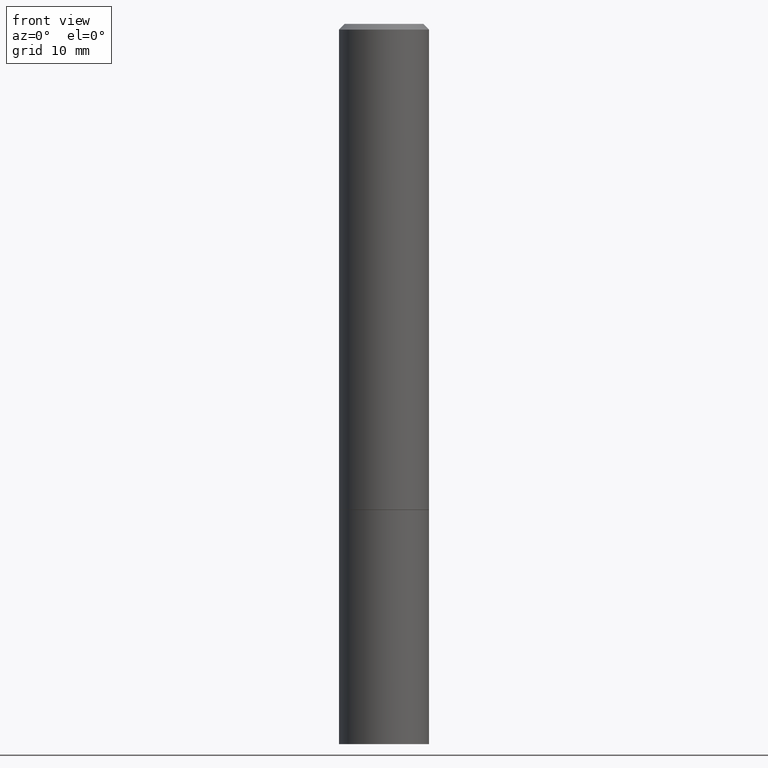
[diagram: clean part render]
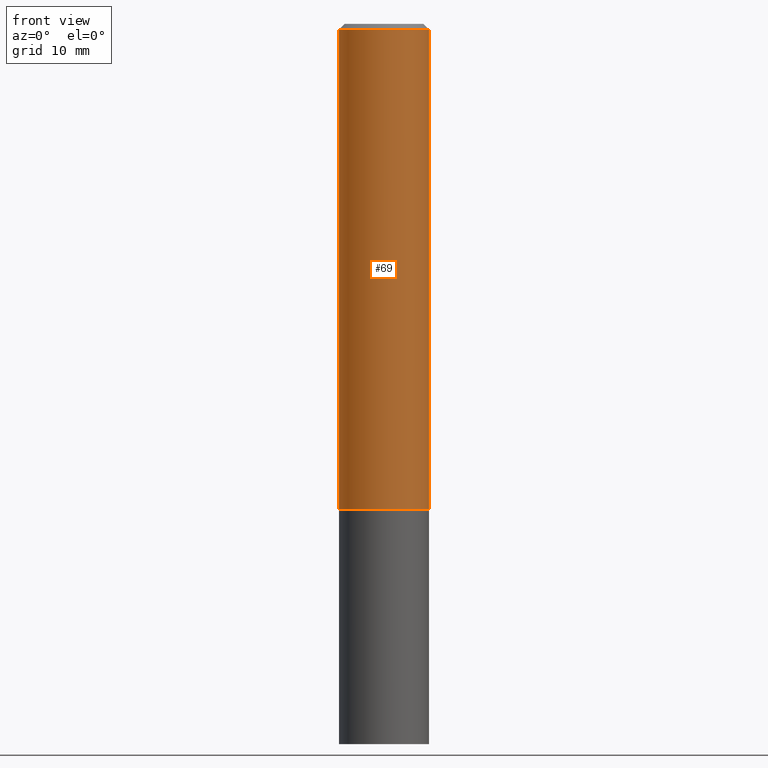
[diagram: same view with one face highlighted and labeled with its STEP entity id]
A machine part, front view. The second image highlights one B-rep face of the part: STEP entity #69.
In plain terms, the highlighted cylindrical surface (partial cylindrical patch) has radius 3.9687 mm, axis along (-0, 0, 1).
Its self-contained STEP definition (entity closure, byte-faithful):
#38 = CARTESIAN_POINT ( 'NONE',  ( 0.1562500000000000000, -6.979471196347444214E-15, -1.686499999999999888 ) ) ;
#45 = CARTESIAN_POINT ( 'NONE',  ( -0.1562499999999998057, 1.021258291611614692E-15, -0.02000000000000003511 ) ) ;
#54 = VERTEX_POINT ( 'NONE', #45 ) ;
#60 = ORIENTED_EDGE ( 'NONE', *, *, #201, .F. ) ;
#61 = CIRCLE ( 'NONE', #310, 0.1562500000000000000 ) ;
#64 = VECTOR ( 'NONE', #219, 39.37007874015748143 ) ;
#69 = ADVANCED_FACE ( 'NONE', ( #359 ), #93, .T. ) ;
#70 = CARTESIAN_POINT ( 'NONE',  ( 0.000000000000000000, 0.000000000000000000, 0.000000000000000000 ) ) ;
#78 = CARTESIAN_POINT ( 'NONE',  ( -0.1562499999999999167, 1.110223024625155949E-15, -7.685836078523285555E-30 ) ) ;
#80 = AXIS2_PLACEMENT_3D ( 'NONE', #303, #209, #121 ) ;
#82 = DIRECTION ( 'NONE',  ( -2.445468806185136877E-29, 3.491481338843145188E-15, 1.000000000000000000 ) ) ;
#83 = VERTEX_POINT ( 'NONE', #161 ) ;
#85 = ORIENTED_EDGE ( 'NONE', *, *, #99, .F. ) ;
#88 = AXIS2_PLACEMENT_3D ( 'NONE', #70, #298, #218 ) ;
#93 = CYLINDRICAL_SURFACE ( 'NONE', #88, 0.1562499999999999167 ) ;
#99 = EDGE_CURVE ( 'NONE', #54, #191, #134, .T. ) ;
#121 = DIRECTION ( 'NONE',  ( 1.000000000000000000, -6.982962677686265133E-15, 0.000000000000000000 ) ) ;
#132 = CARTESIAN_POINT ( 'NONE',  ( 0.1562499999999998057, -1.141782438928663330E-15, -0.02000000000000003511 ) ) ;
#134 = CIRCLE ( 'NONE', #80, 0.1562499999999998057 ) ;
#156 = VERTEX_POINT ( 'NONE', #38 ) ;
#161 = CARTESIAN_POINT ( 'NONE',  ( -0.1562500000000000000, -1.868883427742755657E-15, -1.686499999999999888 ) ) ;
#167 = LINE ( 'NONE', #195, #332 ) ;
#170 = DIRECTION ( 'NONE',  ( -2.445468806185136597E-29, 3.491481338843145583E-15, 1.000000000000000000 ) ) ;
#191 = VERTEX_POINT ( 'NONE', #132 ) ;
#195 = CARTESIAN_POINT ( 'NONE',  ( 0.1562499999999999167, -1.091087918388478385E-15, 7.619026212181144772E-30 ) ) ;
#201 = EDGE_CURVE ( 'NONE', #83, #54, #221, .T. ) ;
#209 = DIRECTION ( 'NONE',  ( -2.445468806185136597E-29, 3.491481338843145583E-15, 1.000000000000000000 ) ) ;
#218 = DIRECTION ( 'NONE',  ( 1.000000000000000000, -6.982962677686265133E-15, 4.876176775795935232E-29 ) ) ;
#219 = DIRECTION ( 'NONE',  ( -2.445468806185136877E-29, 3.491481338843145188E-15, 1.000000000000000000 ) ) ;
#221 = LINE ( 'NONE', #78, #64 ) ;
#270 = ORIENTED_EDGE ( 'NONE', *, *, #297, .T. ) ;
#277 = EDGE_CURVE ( 'NONE', #83, #156, #61, .T. ) ;
#289 = EDGE_LOOP ( 'NONE', ( #60, #363, #270, #85 ) ) ;
#297 = EDGE_CURVE ( 'NONE', #156, #191, #167, .T. ) ;
#298 = DIRECTION ( 'NONE',  ( -2.445468806185136597E-29, 3.491481338843145583E-15, 1.000000000000000000 ) ) ;
#303 = CARTESIAN_POINT ( 'NONE',  ( 4.890937612370281041E-31, -6.982962677686302702E-17, -0.02000000000000003511 ) ) ;
#310 = AXIS2_PLACEMENT_3D ( 'NONE', #311, #170, #366 ) ;
#311 = CARTESIAN_POINT ( 'NONE',  ( 4.124283141631232404E-29, -5.888383277958965040E-15, -1.686499999999999888 ) ) ;
#332 = VECTOR ( 'NONE', #82, 39.37007874015748143 ) ;
#359 = FACE_OUTER_BOUND ( 'NONE', #289, .T. ) ;
#363 = ORIENTED_EDGE ( 'NONE', *, *, #277, .T. ) ;
#366 = DIRECTION ( 'NONE',  ( 1.000000000000000000, -6.982962677686269077E-15, 0.000000000000000000 ) ) ;